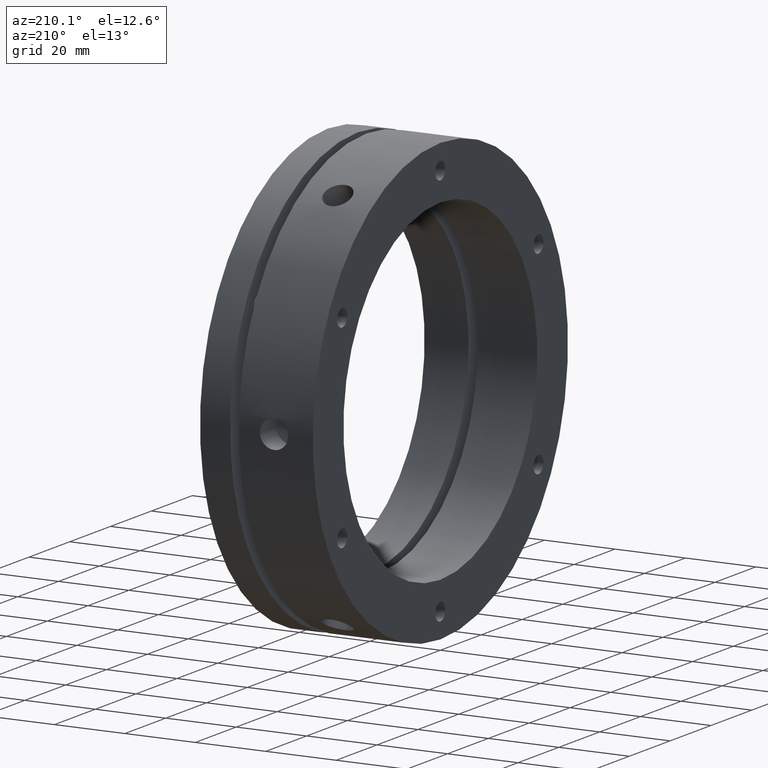
[diagram: clean part render]
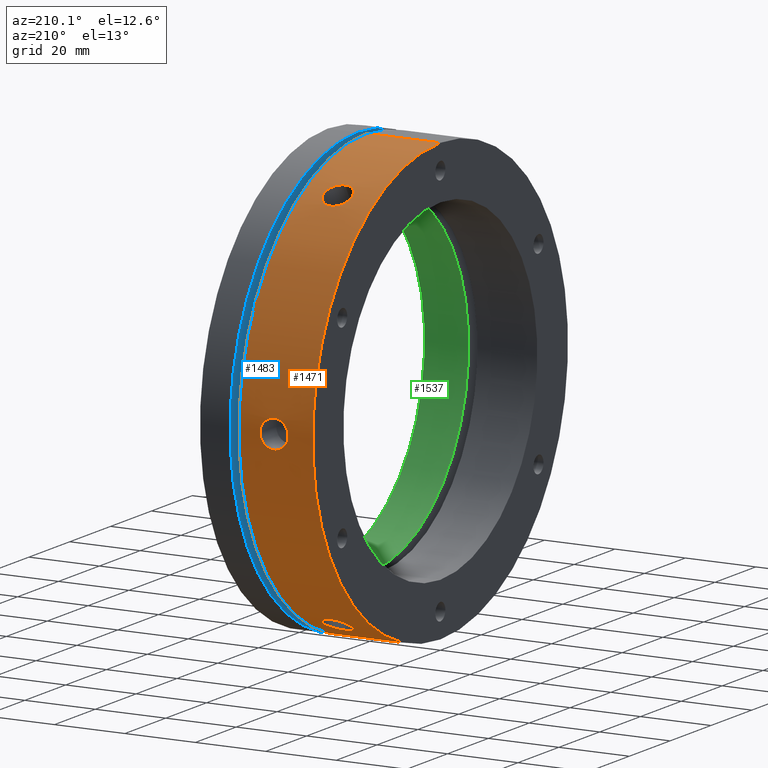
[diagram: same view with three faces highlighted in distinct colors, each labeled with its STEP entity id]
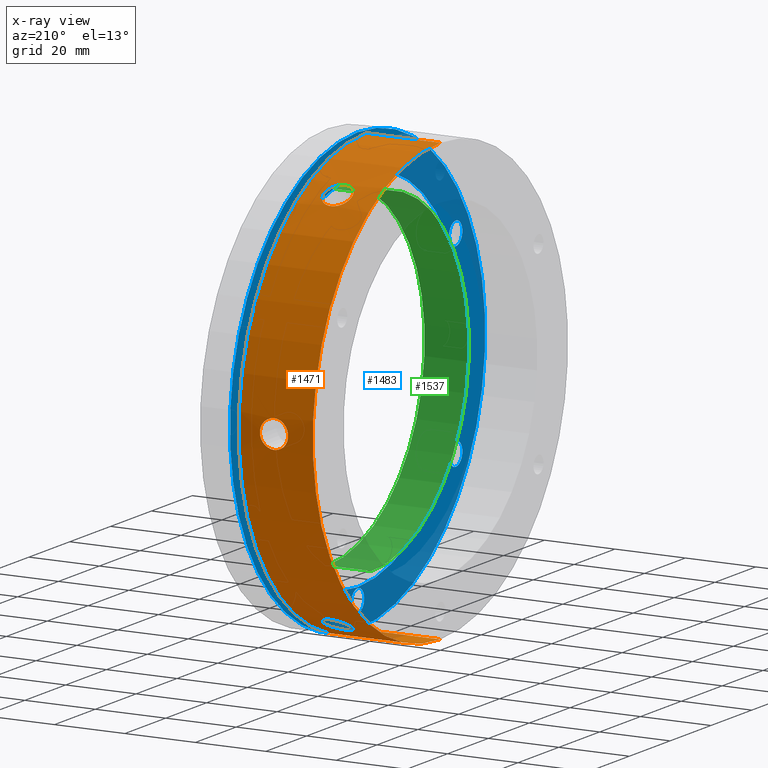
[diagram: x-ray of the same camera — body ghosted, the three highlighted faces saturated]
A machine part, auxiliary view with three faces highlighted in distinct colors.
The next image is the same camera in x-ray (body ghosted, the three faces saturated) — at least one of them is partly hidden behind the body in this view.
Their STEP definitions:

[orange] entity #1471 — the highlighted cylindrical surface (partial cylindrical patch) has radius 62.5 mm, axis along (1, 0, 0).
#59 = VERTEX_POINT ( 'NONE', #1100 ) ;
#99 = VERTEX_POINT ( 'NONE', #1140 ) ;
#102 = VERTEX_POINT ( 'NONE', #1143 ) ;
#115 = VERTEX_POINT ( 'NONE', #1156 ) ;
#119 = VERTEX_POINT ( 'NONE', #1160 ) ;
#132 = VERTEX_POINT ( 'NONE', #1173 ) ;
#150 = VERTEX_POINT ( 'NONE', #1191 ) ;
#161 = ORIENTED_EDGE ( 'NONE', *, *, #4025, .T. ) ;
#175 = VERTEX_POINT ( 'NONE', #1215 ) ;
#188 = VERTEX_POINT ( 'NONE', #1227 ) ;
#190 = VERTEX_POINT ( 'NONE', #1229 ) ;
#252 = FACE_BOUND ( 'NONE', #416, .T. ) ;
#261 = CYLINDRICAL_SURFACE ( 'NONE', #3765, 62.50000000000000000 ) ;
#265 = FACE_BOUND ( 'NONE', #396, .T. ) ;
#396 = EDGE_LOOP ( 'NONE', ( #3708, #3707 ) ) ;
#416 = EDGE_LOOP ( 'NONE', ( #3706, #3705 ) ) ;
#418 = EDGE_LOOP ( 'NONE', ( #161, #3709 ) ) ;
#437 = EDGE_LOOP ( 'NONE', ( #3704, #3703, #3702, #3701 ) ) ;
#585 = AXIS2_PLACEMENT_3D ( 'NONE', #4289, #4290, #4291 ) ;
#586 = AXIS2_PLACEMENT_3D ( 'NONE', #4252, #4253, #4254 ) ;
#1100 = CARTESIAN_POINT ( 'NONE',  ( 10.99999999999998600, 27.72183271429991800, -56.01562274009252500 ) ) ;
#1140 = CARTESIAN_POINT ( 'NONE',  ( 10.99999999999998600, 62.37186865887537800, -4.000000000000033800 ) ) ;
#1143 = CARTESIAN_POINT ( 'NONE',  ( 10.99999999999998600, 34.65003594457543600, -52.01562274009253200 ) ) ;
#1156 = CARTESIAN_POINT ( 'NONE',  ( -1.734723475976807100E-014, 0.0000000000000000000, -62.50000000000000000 ) ) ;
#1160 = CARTESIAN_POINT ( 'NONE',  ( 10.99999999999998600, 27.72183271429999300, 56.01562274009249600 ) ) ;
#1173 = CARTESIAN_POINT ( 'NONE',  ( -1.734723475976807100E-014, 7.654042494670957800E-015, 62.50000000000000000 ) ) ;
#1191 = CARTESIAN_POINT ( 'NONE',  ( 10.99999999999998600, 34.65003594457550000, 52.01562274009248900 ) ) ;
#1215 = CARTESIAN_POINT ( 'NONE',  ( 10.99999999999998600, 62.37186865887537800, 3.999999999999966200 ) ) ;
#1227 = CARTESIAN_POINT ( 'NONE',  ( 20.99999999999998600, 0.0000000000000000000, -62.50000000000000000 ) ) ;
#1229 = CARTESIAN_POINT ( 'NONE',  ( 20.99999999999998600, 7.654042494670957800E-015, 62.50000000000000000 ) ) ;
#1471 = ADVANCED_FACE ( 'NONE', ( #1616, #265, #252, #1614 ), #261, .T. ) ;
#1614 = FACE_OUTER_BOUND ( 'NONE', #437, .T. ) ;
#1616 = FACE_BOUND ( 'NONE', #418, .T. ) ;
#2137 = LINE ( 'NONE', #4251, #2145 ) ;
#2141 = CIRCLE ( 'NONE', #586, 62.50000000000000000 ) ;
#2142 = CIRCLE ( 'NONE', #585, 62.50000000000000000 ) ;
#2143 = LINE ( 'NONE', #4462, #2147 ) ;
#2145 = VECTOR ( 'NONE', #4246, 1000.000000000000000 ) ;
#2147 = VECTOR ( 'NONE', #4463, 1000.000000000000000 ) ;
#2667 = DIRECTION ( 'NONE',  ( 0.0000000000000000000, 0.0000000000000000000, -1.000000000000000000 ) ) ;
#2668 = CARTESIAN_POINT ( 'NONE',  ( 15.99999999999998200, 0.0000000000000000000, 0.0000000000000000000 ) ) ;
#2669 = DIRECTION ( 'NONE',  ( 1.000000000000000000, 0.0000000000000000000, 0.0000000000000000000 ) ) ;
#3701 = ORIENTED_EDGE ( 'NONE', *, *, #4026, .F. ) ;
#3702 = ORIENTED_EDGE ( 'NONE', *, *, #4017, .T. ) ;
#3703 = ORIENTED_EDGE ( 'NONE', *, *, #4020, .T. ) ;
#3704 = ORIENTED_EDGE ( 'NONE', *, *, #4019, .T. ) ;
#3705 = ORIENTED_EDGE ( 'NONE', *, *, #4022, .T. ) ;
#3706 = ORIENTED_EDGE ( 'NONE', *, *, #4018, .T. ) ;
#3707 = ORIENTED_EDGE ( 'NONE', *, *, #4023, .T. ) ;
#3708 = ORIENTED_EDGE ( 'NONE', *, *, #4021, .T. ) ;
#3709 = ORIENTED_EDGE ( 'NONE', *, *, #4024, .T. ) ;
#3765 = AXIS2_PLACEMENT_3D ( 'NONE', #2668, #2669, #2667 ) ;
#4017 = EDGE_CURVE ( 'NONE', #190, #188, #2141, .T. ) ;
#4018 = EDGE_CURVE ( 'NONE', #102, #59, #4762, .T. ) ;
#4019 = EDGE_CURVE ( 'NONE', #115, #132, #2142, .T. ) ;
#4020 = EDGE_CURVE ( 'NONE', #132, #190, #2137, .T. ) ;
#4021 = EDGE_CURVE ( 'NONE', #175, #99, #4759, .T. ) ;
#4022 = EDGE_CURVE ( 'NONE', #59, #102, #4757, .T. ) ;
#4023 = EDGE_CURVE ( 'NONE', #99, #175, #4763, .T. ) ;
#4024 = EDGE_CURVE ( 'NONE', #150, #119, #4766, .T. ) ;
#4025 = EDGE_CURVE ( 'NONE', #119, #150, #4774, .T. ) ;
#4026 = EDGE_CURVE ( 'NONE', #115, #188, #2143, .T. ) ;
#4242 = CARTESIAN_POINT ( 'NONE',  ( 10.99999999999998600, 34.65003594457543600, -52.01562274009253200 ) ) ;
#4246 = DIRECTION ( 'NONE',  ( 1.000000000000000000, 0.0000000000000000000, 0.0000000000000000000 ) ) ;
#4250 = CARTESIAN_POINT ( 'NONE',  ( 10.73908197253546200, 34.65003594457543600, -52.01562274009252500 ) ) ;
#4251 = CARTESIAN_POINT ( 'NONE',  ( 15.99999999999998200, 7.654042494670957800E-015, 62.50000000000000000 ) ) ;
#4252 = CARTESIAN_POINT ( 'NONE',  ( 20.99999999999998600, 0.0000000000000000000, 0.0000000000000000000 ) ) ;
#4253 = DIRECTION ( 'NONE',  ( -1.000000000000000000, -0.0000000000000000000, -0.0000000000000000000 ) ) ;
#4254 = DIRECTION ( 'NONE',  ( 0.0000000000000000000, 0.0000000000000000000, -1.000000000000000000 ) ) ;
#4255 = CARTESIAN_POINT ( 'NONE',  ( 10.47406487987308000, 34.62826723459271200, -52.03014256505085900 ) ) ;
#4256 = CARTESIAN_POINT ( 'NONE',  ( 9.961129843323933000, 34.54288401539118800, -52.08686773947071900 ) ) ;
#4257 = CARTESIAN_POINT ( 'NONE',  ( 9.711816615131796800, 34.47974157233441200, -52.12875893047970500 ) ) ;
#4258 = CARTESIAN_POINT ( 'NONE',  ( 9.227578193804642800, 34.31203177995331500, -52.23930093003259100 ) ) ;
#4259 = CARTESIAN_POINT ( 'NONE',  ( 8.993496661129240600, 34.20710537631733700, -52.30817311177330700 ) ) ;
#4260 = CARTESIAN_POINT ( 'NONE',  ( 8.560255960812094500, 33.96398500988600900, -52.46635831431372300 ) ) ;
#4261 = CARTESIAN_POINT ( 'NONE',  ( 8.358308850565325800, 33.82495705325564500, -52.55622897989235300 ) ) ;
#4262 = CARTESIAN_POINT ( 'NONE',  ( 7.984920217227907500, 33.51005989736189900, -52.75756637598707500 ) ) ;
#4263 = CARTESIAN_POINT ( 'NONE',  ( 7.819349203663183100, 33.33907207893907600, -52.86589863106917900 ) ) ;
#4264 = CARTESIAN_POINT ( 'NONE',  ( 7.529797173180686100, 32.97165707797332600, -53.09582652796459000 ) ) ;
#4265 = CARTESIAN_POINT ( 'NONE',  ( 7.404626013742523000, 32.77276933332913700, -53.21892836721381300 ) ) ;
#4266 = CARTESIAN_POINT ( 'NONE',  ( 7.203964270729465500, 32.35902138127138300, -53.47151093411005700 ) ) ;
#4267 = CARTESIAN_POINT ( 'NONE',  ( 7.128370915274827800, 32.14544167899404000, -53.60024510436626600 ) ) ;
#4268 = CARTESIAN_POINT ( 'NONE',  ( 7.026140786661166300, 31.70473899975172900, -53.86209447230371000 ) ) ;
#4269 = CARTESIAN_POINT ( 'NONE',  ( 6.999816622141542800, 31.47645795416516300, -53.99585572750349600 ) ) ;
#4270 = CARTESIAN_POINT ( 'NONE',  ( 7.000185324294786700, 31.01870905136947700, -54.26010993236364800 ) ) ;
#4271 = CARTESIAN_POINT ( 'NONE',  ( 7.026299543754061200, 30.79283220314310300, -54.38857257091833500 ) ) ;
#4272 = CARTESIAN_POINT ( 'NONE',  ( 7.128274619578095700, 30.34692032447638600, -54.63862890128975600 ) ) ;
#4273 = CARTESIAN_POINT ( 'NONE',  ( 7.205381377466989300, 30.12454457109813800, -54.76148694851169600 ) ) ;
#4274 = CARTESIAN_POINT ( 'NONE',  ( 7.406460515172702800, 29.69930418583749100, -54.99327203672454100 ) ) ;
#4275 = CARTESIAN_POINT ( 'NONE',  ( 7.529458518527383700, 29.49692593668033800, -55.10198390216799400 ) ) ;
#4276 = CARTESIAN_POINT ( 'NONE',  ( 7.819990495107329100, 29.11285519957229100, -55.30586706487407200 ) ) ;
#4277 = CARTESIAN_POINT ( 'NONE',  ( 7.989007516708714900, 28.93050755054258300, -55.40135171242022900 ) ) ;
#4278 = CARTESIAN_POINT ( 'NONE',  ( 8.358142559934096400, 28.60292409874481800, -55.57118652410378000 ) ) ;
#4279 = CARTESIAN_POINT ( 'NONE',  ( 8.559556228073788000, 28.45550908161983700, -55.64670162383816900 ) ) ;
#4280 = CARTESIAN_POINT ( 'NONE',  ( 8.996942524801378100, 28.19471347890664200, -55.77929302661500800 ) ) ;
#4281 = CARTESIAN_POINT ( 'NONE',  ( 9.229680194154054700, 28.08372155192327600, -55.83515505791793700 ) ) ;
#4282 = CARTESIAN_POINT ( 'NONE',  ( 9.711030784725148000, 27.90529495582672200, -55.92454264431682300 ) ) ;
#4283 = CARTESIAN_POINT ( 'NONE',  ( 9.963201383353883500, 27.83650866016614600, -55.95874749201846800 ) ) ;
#4284 = CARTESIAN_POINT ( 'NONE',  ( 10.47952407784284600, 27.74454694549256200, -56.00439938123031400 ) ) ;
#4285 = CARTESIAN_POINT ( 'NONE',  ( 10.73908171002376500, 27.72183271429991800, -56.01562274009251800 ) ) ;
#4286 = CARTESIAN_POINT ( 'NONE',  ( 10.99999999999998600, 27.72183271429991800, -56.01562274009252500 ) ) ;
#4287 = CARTESIAN_POINT ( 'NONE',  ( 10.99999999999998600, 62.37186865887537800, 3.999999999999966200 ) ) ;
#4288 = CARTESIAN_POINT ( 'NONE',  ( 10.73908197253546200, 62.37186865887539300, 3.999999999999968000 ) ) ;
#4289 = CARTESIAN_POINT ( 'NONE',  ( -1.734723475976807100E-014, 0.0000000000000000000, 0.0000000000000000000 ) ) ;
#4290 = DIRECTION ( 'NONE',  ( 1.000000000000000000, 0.0000000000000000000, 0.0000000000000000000 ) ) ;
#4291 = DIRECTION ( 'NONE',  ( 0.0000000000000000000, 0.0000000000000000000, -1.000000000000000000 ) ) ;
#4292 = CARTESIAN_POINT ( 'NONE',  ( 10.99999999999998600, 27.72183271429991800, -56.01562274009252500 ) ) ;
#4293 = CARTESIAN_POINT ( 'NONE',  ( 11.26091829009181700, 27.72183271429991800, -56.01562274009251800 ) ) ;
#4294 = CARTESIAN_POINT ( 'NONE',  ( 10.47406487987307400, 62.37355884115642400, 3.973887831668149000 ) ) ;
#4295 = CARTESIAN_POINT ( 'NONE',  ( 9.961129843323925900, 62.37999267363737500, 3.871581207572814400 ) ) ;
#4296 = CARTESIAN_POINT ( 'NONE',  ( 9.711816615131796800, 62.38470028771754300, 3.795952652324127400 ) ) ;
#4297 = CARTESIAN_POINT ( 'NONE',  ( 9.227578193804644600, 62.39657757132494700, 3.595440711882243300 ) ) ;
#4298 = CARTESIAN_POINT ( 'NONE',  ( 8.993496661129238800, 62.40375942850843700, 3.470135689935395000 ) ) ;
#4299 = CARTESIAN_POINT ( 'NONE',  ( 8.560255960812092700, 62.41919164919560400, 3.180494675158259500 ) ) ;
#4300 = CARTESIAN_POINT ( 'NONE',  ( 8.358308850565329400, 62.42750795032652900, 3.015157600090816900 ) ) ;
#4301 = CARTESIAN_POINT ( 'NONE',  ( 7.984920217227905700, 62.44442267212947000, 2.641779965460014700 ) ) ;
#4302 = CARTESIAN_POINT ( 'NONE',  ( 7.819349203663181300, 62.45274724786843000, 2.439534043427111300 ) ) ;
#4303 = CARTESIAN_POINT ( 'NONE',  ( 7.529797173180686100, 62.46816314713570500, 2.006379370411571500 ) ) ;
#4304 = CARTESIAN_POINT ( 'NONE',  ( 7.404626013742519500, 62.47532859485603000, 1.772586611423695900 ) ) ;
#4305 = CARTESIAN_POINT ( 'NONE',  ( 7.203964270729464700, 62.48719753831240800, 1.287979090729774800 ) ) ;
#4306 = CARTESIAN_POINT ( 'NONE',  ( 7.128370915274824200, 62.49189474895069200, 1.038646557696780300 ) ) ;
#4307 = CARTESIAN_POINT ( 'NONE',  ( 7.026140786661167100, 62.49831161392825200, 0.5260621579883499900 ) ) ;
#4308 = CARTESIAN_POINT ( 'NONE',  ( 6.999816622141542800, 62.50001173618011300, 0.2614843457080131000 ) ) ;
#4309 = CARTESIAN_POINT ( 'NONE',  ( 7.000185324294786700, 62.49998813924801800, -0.2670649350975878900 ) ) ;
#4310 = CARTESIAN_POINT ( 'NONE',  ( 7.026299543754062100, 62.49830162356032300, -0.5269113430657276200 ) ) ;
#4311 = CARTESIAN_POINT ( 'NONE',  ( 7.128274619578100200, 62.49190081870573700, -1.038110523026053700 ) ) ;
#4312 = CARTESIAN_POINT ( 'NONE',  ( 7.205381377466991900, 62.48711113197018100, -1.292122598248292700 ) ) ;
#4313 = CARTESIAN_POINT ( 'NONE',  ( 7.406460515172704500, 62.47522271395060000, -1.776284118705516900 ) ) ;
#4314 = CARTESIAN_POINT ( 'NONE',  ( 7.529458518527385500, 62.46818082653884100, -2.005904756370755900 ) ) ;
#4315 = CARTESIAN_POINT ( 'NONE',  ( 7.819990495107330900, 62.45271345629219400, -2.440461352909577600 ) ) ;
#4316 = CARTESIAN_POINT ( 'NONE',  ( 7.989007516708720200, 62.44423176222370100, -2.646121373062754900 ) ) ;
#4317 = CARTESIAN_POINT ( 'NONE',  ( 8.358142559934098200, 62.42752129768971500, -3.014734370020776500 ) ) ;
#4318 = CARTESIAN_POINT ( 'NONE',  ( 8.559556228073795100, 62.41921178386654400, -3.180157069617526800 ) ) ;
#4319 = CARTESIAN_POINT ( 'NONE',  ( 8.996942524801388800, 62.40364150563812000, -3.472308388150843000 ) ) ;
#4320 = CARTESIAN_POINT ( 'NONE',  ( 9.229680194154063600, 62.39652348036175800, -3.596361232184900600 ) ) ;
#4321 = CARTESIAN_POINT ( 'NONE',  ( 9.711030784725155100, 62.38472210291788400, -3.795576990314732500 ) ) ;
#4322 = CARTESIAN_POINT ( 'NONE',  ( 9.963201383353887100, 62.37995122212982600, -3.872250093639850700 ) ) ;
#4323 = CARTESIAN_POINT ( 'NONE',  ( 10.47952407784285000, 62.37350606058121400, -3.974717219328662000 ) ) ;
#4324 = CARTESIAN_POINT ( 'NONE',  ( 10.73908171002377200, 62.37186865887538500, -4.000000000000034600 ) ) ;
#4325 = CARTESIAN_POINT ( 'NONE',  ( 10.99999999999998600, 62.37186865887537800, -4.000000000000033800 ) ) ;
#4326 = CARTESIAN_POINT ( 'NONE',  ( 10.99999999999998600, 62.37186865887537800, -4.000000000000033800 ) ) ;
#4327 = CARTESIAN_POINT ( 'NONE',  ( 11.26091829009181700, 62.37186865887538500, -4.000000000000033800 ) ) ;
#4328 = CARTESIAN_POINT ( 'NONE',  ( 11.52593565096306200, 27.74529165439950500, -56.00403037311326000 ) ) ;
#4329 = CARTESIAN_POINT ( 'NONE',  ( 12.03887117472569700, 27.83710888766612300, -55.95844883300912900 ) ) ;
#4330 = CARTESIAN_POINT ( 'NONE',  ( 12.28818463263824500, 27.90495907811523300, -55.92471140217161700 ) ) ;
#4331 = CARTESIAN_POINT ( 'NONE',  ( 12.77242348288917200, 28.08454651322136500, -55.83474127919080800 ) ) ;
#4332 = CARTESIAN_POINT ( 'NONE',  ( 13.00650517268105600, 28.19665498299772800, -55.77830833187889700 ) ) ;
#4333 = CARTESIAN_POINT ( 'NONE',  ( 13.43974613008660600, 28.45520805072128600, -55.64685226844845500 ) ) ;
#4334 = CARTESIAN_POINT ( 'NONE',  ( 13.64169334056506600, 28.60255258306033400, -55.57138571342171200 ) ) ;
#4335 = CARTESIAN_POINT ( 'NONE',  ( 14.01508210165670800, 28.93436509660693200, -55.39934513000021400 ) ) ;
#4336 = CARTESIAN_POINT ( 'NONE',  ( 14.18065304588344800, 29.11367774145310600, -55.30543132171033000 ) ) ;
#4337 = CARTESIAN_POINT ( 'NONE',  ( 14.47020494900288200, 29.49650927672302800, -55.10220418278918000 ) ) ;
#4338 = CARTESIAN_POINT ( 'NONE',  ( 14.59537600473698200, 29.70256283620655300, -54.99151304929750900 ) ) ;
#4339 = CARTESIAN_POINT ( 'NONE',  ( 14.79603734635862500, 30.12818029365476800, -54.75948775036968600 ) ) ;
#4340 = CARTESIAN_POINT ( 'NONE',  ( 14.87163046199583100, 30.34645749518172400, -54.63888920596527000 ) ) ;
#4341 = CARTESIAN_POINT ( 'NONE',  ( 14.97385999695742100, 30.79357763997437700, -54.38815378645875900 ) ) ;
#4342 = CARTESIAN_POINT ( 'NONE',  ( 15.00018379458790100, 31.02355961178728400, -54.25733673818754000 ) ) ;
#4343 = CARTESIAN_POINT ( 'NONE',  ( 14.99981425006657800, 31.48128430573106900, -53.99304195328249300 ) ) ;
#4344 = CARTESIAN_POINT ( 'NONE',  ( 14.97369968184067800, 31.70547434537725800, -53.86165832728736500 ) ) ;
#4345 = CARTESIAN_POINT ( 'NONE',  ( 14.87172400121409600, 32.14498485127611400, -53.60051576376901000 ) ) ;
#4346 = CARTESIAN_POINT ( 'NONE',  ( 14.79461697510932400, 32.36257064806552100, -53.46936187468272500 ) ) ;
#4347 = CARTESIAN_POINT ( 'NONE',  ( 14.59353749232171000, 32.77592192339325500, -53.21698582509570500 ) ) ;
#4348 = CARTESIAN_POINT ( 'NONE',  ( 14.47053937015888000, 32.97125796739548100, -53.09607723332128200 ) ) ;
#4349 = CARTESIAN_POINT ( 'NONE',  ( 14.18000723354046900, 33.33986073954727700, -52.86540414474246300 ) ) ;
#4350 = CARTESIAN_POINT ( 'NONE',  ( 14.01099020717969900, 33.51372637646892400, -52.75522896295154900 ) ) ;
#4351 = CARTESIAN_POINT ( 'NONE',  ( 13.64185526146667500, 33.82459878576008100, -52.55645113164156600 ) ) ;
#4352 = CARTESIAN_POINT ( 'NONE',  ( 13.44044167789000000, 33.96370403581519100, -52.46654369020932800 ) ) ;
#4353 = CARTESIAN_POINT ( 'NONE',  ( 13.00305561046164400, 34.20892891269015500, -52.30698405830339200 ) ) ;
#4354 = CARTESIAN_POINT ( 'NONE',  ( 12.77031815067331200, 34.31280259452159200, -52.23879338784701800 ) ) ;
#4355 = CARTESIAN_POINT ( 'NONE',  ( 12.28896796598593400, 34.47942748642129400, -52.12896542918721100 ) ) ;
#4356 = CARTESIAN_POINT ( 'NONE',  ( 12.03679758098764200, 34.54344277801503400, -52.08649725499181200 ) ) ;
#4357 = CARTESIAN_POINT ( 'NONE',  ( 11.52047540007440100, 34.62895915703983000, -52.02968213387753600 ) ) ;
#4358 = CARTESIAN_POINT ( 'NONE',  ( 11.26091802758012300, 34.65003594457542800, -52.01562274009253900 ) ) ;
#4359 = CARTESIAN_POINT ( 'NONE',  ( 10.99999999999998600, 34.65003594457543600, -52.01562274009253200 ) ) ;
#4360 = CARTESIAN_POINT ( 'NONE',  ( 11.26091829009181700, 34.65003594457550000, 52.01562274009247500 ) ) ;
#4361 = CARTESIAN_POINT ( 'NONE',  ( 10.99999999999998600, 34.65003594457550000, 52.01562274009248900 ) ) ;
#4362 = CARTESIAN_POINT ( 'NONE',  ( 11.52593565096306200, 62.37355884463112700, -3.973887778438294700 ) ) ;
#4363 = CARTESIAN_POINT ( 'NONE',  ( 12.03887117472570100, 62.37999268959062200, -3.871580951872141400 ) ) ;
#4364 = CARTESIAN_POINT ( 'NONE',  ( 12.28818463263824500, 62.38470031265150300, -3.795952247872852200 ) ) ;
#4365 = CARTESIAN_POINT ( 'NONE',  ( 12.77242348288917600, 62.39657761812159700, -3.595439905380047200 ) ) ;
#4366 = CARTESIAN_POINT ( 'NONE',  ( 13.00650517268105600, 62.40375948702720900, -3.470134648918363800 ) ) ;
#4367 = CARTESIAN_POINT ( 'NONE',  ( 13.43974613008660200, 62.41919173047671200, -3.180493092328140000 ) ) ;
#4368 = CARTESIAN_POINT ( 'NONE',  ( 13.64169334056506200, 62.42750804285699200, -3.015155706700414700 ) ) ;
#4369 = CARTESIAN_POINT ( 'NONE',  ( 14.01508210165670800, 62.44442278390536700, -2.641777348964744000 ) ) ;
#4370 = CARTESIAN_POINT ( 'NONE',  ( 14.18065304588344400, 62.45274736258326700, -2.439531139163240600 ) ) ;
#4371 = CARTESIAN_POINT ( 'NONE',  ( 14.47020494900288200, 62.46816326517410500, -2.006375734789122700 ) ) ;
#4372 = CARTESIAN_POINT ( 'NONE',  ( 14.59537600473698200, 62.47532871133839900, -1.772582550990340300 ) ) ;
#4373 = CARTESIAN_POINT ( 'NONE',  ( 14.79603734635862500, 62.48719763687032700, -1.287974371082137000 ) ) ;
#4374 = CARTESIAN_POINT ( 'NONE',  ( 14.87163046199583100, 62.49189483452013100, -1.038641497290593500 ) ) ;
#4375 = CARTESIAN_POINT ( 'NONE',  ( 14.97385999695742100, 62.49831166399528100, -0.5260563836031304500 ) ) ;
#4376 = CARTESIAN_POINT ( 'NONE',  ( 15.00018379458790100, 62.50001176285074700, -0.2614776294651043900 ) ) ;
#4377 = CARTESIAN_POINT ( 'NONE',  ( 14.99981425006657800, 62.49998811200715200, 0.2670709758821817600 ) ) ;
#4378 = CARTESIAN_POINT ( 'NONE',  ( 14.97369968184067800, 62.49830157407713900, 0.5269170584887957800 ) ) ;
#4379 = CARTESIAN_POINT ( 'NONE',  ( 14.87172400121409600, 62.49190073301026200, 1.038115603586530200 ) ) ;
#4380 = CARTESIAN_POINT ( 'NONE',  ( 14.79461697510932400, 62.48711103165113200, 1.292127375651984000 ) ) ;
#4381 = CARTESIAN_POINT ( 'NONE',  ( 14.59353749232171400, 62.47522259906585900, 1.776288105566008900 ) ) ;
#4382 = CARTESIAN_POINT ( 'NONE',  ( 14.47053937015887600, 62.46818070905453600, 2.005908377833908400 ) ) ;
#4383 = CARTESIAN_POINT ( 'NONE',  ( 14.18000723354046700, 62.45271334045177300, 2.440464286712124200 ) ) ;
#4384 = CARTESIAN_POINT ( 'NONE',  ( 14.01099020717969900, 62.44423165261508800, 2.646123936026898400 ) ) ;
#4385 = CARTESIAN_POINT ( 'NONE',  ( 13.64185526146667500, 62.42752120563702800, 3.014736255463708000 ) ) ;
#4386 = CARTESIAN_POINT ( 'NONE',  ( 13.44044167789000000, 62.41921170239502500, 3.180158656527333000 ) ) ;
#4387 = CARTESIAN_POINT ( 'NONE',  ( 13.00305561046164400, 62.40364144618346400, 3.472309445493935600 ) ) ;
#4388 = CARTESIAN_POINT ( 'NONE',  ( 12.77031815067331200, 62.39652343418288200, 3.596362027972762400 ) ) ;
#4389 = CARTESIAN_POINT ( 'NONE',  ( 12.28896796598593400, 62.38472207788751000, 3.795577396590645900 ) ) ;
#4390 = CARTESIAN_POINT ( 'NONE',  ( 12.03679758098764200, 62.37995120597884800, 3.872250352439187800 ) ) ;
#4391 = CARTESIAN_POINT ( 'NONE',  ( 11.52047540007440500, 62.37350605728721600, 3.974717269671471900 ) ) ;
#4392 = CARTESIAN_POINT ( 'NONE',  ( 11.26091802758012000, 62.37186865887537800, 3.999999999999966200 ) ) ;
#4393 = CARTESIAN_POINT ( 'NONE',  ( 10.99999999999998600, 62.37186865887537800, 3.999999999999966200 ) ) ;
#4394 = CARTESIAN_POINT ( 'NONE',  ( 10.99999999999998600, 27.72183271429999300, 56.01562274009249600 ) ) ;
#4395 = CARTESIAN_POINT ( 'NONE',  ( 10.73908197253546200, 27.72183271429998500, 56.01562274009248200 ) ) ;
#4396 = CARTESIAN_POINT ( 'NONE',  ( 11.52593565096306200, 34.62826719023165400, 52.03014259467494200 ) ) ;
#4397 = CARTESIAN_POINT ( 'NONE',  ( 12.03887117472569900, 34.54288380192454600, 52.08686788113695300 ) ) ;
#4398 = CARTESIAN_POINT ( 'NONE',  ( 12.28818463263824300, 34.47974123453630600, 52.12875915429877000 ) ) ;
#4399 = CARTESIAN_POINT ( 'NONE',  ( 12.77242348288917200, 34.31203110490025700, 52.23930137381075400 ) ) ;
#4400 = CARTESIAN_POINT ( 'NONE',  ( 13.00650517268105600, 34.20710450402953000, 52.30817368296053600 ) ) ;
#4401 = CARTESIAN_POINT ( 'NONE',  ( 13.43974613008660600, 33.96398367975548600, 52.46635917612032100 ) ) ;
#4402 = CARTESIAN_POINT ( 'NONE',  ( 13.64169334056506600, 33.82495545979670500, 52.55623000672130700 ) ) ;
#4403 = CARTESIAN_POINT ( 'NONE',  ( 14.01508210165670800, 33.51005768729848500, 52.75756778103546200 ) ) ;
#4404 = CARTESIAN_POINT ( 'NONE',  ( 14.18065304588344400, 33.33906962113021400, 52.86590018254706500 ) ) ;
#4405 = CARTESIAN_POINT ( 'NONE',  ( 14.47020494900288200, 32.97165398845112300, 53.09582844800007000 ) ) ;
#4406 = CARTESIAN_POINT ( 'NONE',  ( 14.59537600473698400, 32.77276587513186700, 53.21893049830717400 ) ) ;
#4407 = CARTESIAN_POINT ( 'NONE',  ( 14.79603734635862500, 32.35901734321559100, 53.47151337928757200 ) ) ;
#4408 = CARTESIAN_POINT ( 'NONE',  ( 14.87163046199583100, 32.14543733933845700, 53.60024770867467200 ) ) ;
#4409 = CARTESIAN_POINT ( 'NONE',  ( 14.97385999695742400, 31.70473402402095800, 53.86209740285563900 ) ) ;
#4410 = CARTESIAN_POINT ( 'NONE',  ( 15.00018379458790100, 31.47645215106352600, 53.99585910872242800 ) ) ;
#4411 = CARTESIAN_POINT ( 'NONE',  ( 14.99981425006657800, 31.01870380627613600, 54.26011292916469100 ) ) ;
#4412 = CARTESIAN_POINT ( 'NONE',  ( 14.97369968184067800, 30.79282722869993100, 54.38857538577615700 ) ) ;
#4413 = CARTESIAN_POINT ( 'NONE',  ( 14.87172400121409600, 30.34691588173421600, 54.63863136735552200 ) ) ;
#4414 = CARTESIAN_POINT ( 'NONE',  ( 14.79461697510932400, 30.12454038358566100, 54.76148925033469100 ) ) ;
#4415 = CARTESIAN_POINT ( 'NONE',  ( 14.59353749232171500, 29.69930067567265700, 54.99327393066168700 ) ) ;
#4416 = CARTESIAN_POINT ( 'NONE',  ( 14.47053937015887800, 29.49692274165910500, 55.10198561115517900 ) ) ;
#4417 = CARTESIAN_POINT ( 'NONE',  ( 14.18000723354047200, 29.11285260090454200, 55.30586843145457700 ) ) ;
#4418 = CARTESIAN_POINT ( 'NONE',  ( 14.01099020717969900, 28.93050527614621000, 55.40135289897843800 ) ) ;
#4419 = CARTESIAN_POINT ( 'NONE',  ( 13.64185526146667700, 28.60292241987700700, 55.57118738710526900 ) ) ;
#4420 = CARTESIAN_POINT ( 'NONE',  ( 13.44044167788999500, 28.45550766657987700, 55.64670234673666700 ) ) ;
#4421 = CARTESIAN_POINT ( 'NONE',  ( 13.00305561046163800, 28.19471253349335500, 55.77929350379732700 ) ) ;
#4422 = CARTESIAN_POINT ( 'NONE',  ( 12.77031815067331000, 28.08372083966132500, 55.83515541581977700 ) ) ;
#4423 = CARTESIAN_POINT ( 'NONE',  ( 12.28896796598592900, 27.90529459146628000, 55.92454282577782000 ) ) ;
#4424 = CARTESIAN_POINT ( 'NONE',  ( 12.03679758098764200, 27.83650842796387400, 55.95874760743099300 ) ) ;
#4425 = CARTESIAN_POINT ( 'NONE',  ( 11.52047540007440100, 27.74454690024741400, 56.00439940354900200 ) ) ;
#4426 = CARTESIAN_POINT ( 'NONE',  ( 11.26091802758012300, 27.72183271429999300, 56.01562274009250300 ) ) ;
#4427 = CARTESIAN_POINT ( 'NONE',  ( 10.99999999999998600, 27.72183271429999300, 56.01562274009249600 ) ) ;
#4430 = CARTESIAN_POINT ( 'NONE',  ( 10.47406487987307600, 27.74529160656376100, 56.00403039671900300 ) ) ;
#4431 = CARTESIAN_POINT ( 'NONE',  ( 9.961129843323927700, 27.83710865824623000, 55.95844894704352900 ) ) ;
#4432 = CARTESIAN_POINT ( 'NONE',  ( 9.711816615131795100, 27.90495871538319200, 55.92471158280383000 ) ) ;
#4433 = CARTESIAN_POINT ( 'NONE',  ( 9.227578193804641100, 28.08454579137167400, 55.83474164191486700 ) ) ;
#4434 = CARTESIAN_POINT ( 'NONE',  ( 8.993496661129237100, 28.19665405219116000, 55.77830880170869000 ) ) ;
#4435 = CARTESIAN_POINT ( 'NONE',  ( 8.560255960812094500, 28.45520663930964000, 55.64685298947200900 ) ) ;
#4436 = CARTESIAN_POINT ( 'NONE',  ( 8.358308850565324000, 28.60255089707091600, 55.57138657998316900 ) ) ;
#4437 = CARTESIAN_POINT ( 'NONE',  ( 7.984920217227905700, 28.93436277476761400, 55.39934634144708500 ) ) ;
#4438 = CARTESIAN_POINT ( 'NONE',  ( 7.819349203663184900, 29.11367516892938300, 55.30543267449627400 ) ) ;
#4439 = CARTESIAN_POINT ( 'NONE',  ( 7.529797173180689600, 29.49650606916242900, 55.10220589837617700 ) ) ;
#4440 = CARTESIAN_POINT ( 'NONE',  ( 7.404626013742520400, 29.70255926152694000, 54.99151497863751100 ) ) ;
#4441 = CARTESIAN_POINT ( 'NONE',  ( 7.203964270729464700, 30.12817615704105700, 54.75949002483985600 ) ) ;
#4442 = CARTESIAN_POINT ( 'NONE',  ( 7.128370915274826900, 30.34645306995669100, 54.63889166206304500 ) ) ;
#4443 = CARTESIAN_POINT ( 'NONE',  ( 7.026140786661167100, 30.79357261417657600, 54.38815663029205200 ) ) ;
#4444 = CARTESIAN_POINT ( 'NONE',  ( 6.999816622141541900, 31.02355378201497500, 54.25734007321151600 ) ) ;
#4445 = CARTESIAN_POINT ( 'NONE',  ( 7.000185324294786700, 31.48127908787857300, 53.99304499726607500 ) ) ;
#4446 = CARTESIAN_POINT ( 'NONE',  ( 7.026299543754062100, 31.70546942041728400, 53.86166122785257900 ) ) ;
#4447 = CARTESIAN_POINT ( 'NONE',  ( 7.128274619578101000, 32.14498049422942200, 53.60051837826370800 ) ) ;
#4448 = CARTESIAN_POINT ( 'NONE',  ( 7.205381377466991900, 32.36256656087208200, 53.46936435026339800 ) ) ;
#4449 = CARTESIAN_POINT ( 'NONE',  ( 7.406460515172704500, 32.77591852811315900, 53.21698791801902200 ) ) ;
#4450 = CARTESIAN_POINT ( 'NONE',  ( 7.529458518527381900, 32.97125488985855000, 53.09607914579723300 ) ) ;
#4451 = CARTESIAN_POINT ( 'NONE',  ( 7.819990495107322000, 33.33985825671994300, 52.86540571196447800 ) ) ;
#4452 = CARTESIAN_POINT ( 'NONE',  ( 7.989007516708713100, 33.51372421168118600, 52.75523033935747500 ) ) ;
#4453 = CARTESIAN_POINT ( 'NONE',  ( 8.358142559934091100, 33.82459719894495000, 52.55645215408299000 ) ) ;
#4454 = CARTESIAN_POINT ( 'NONE',  ( 8.559556228073789800, 33.96370270224674900, 52.46654455422064000 ) ) ;
#4455 = CARTESIAN_POINT ( 'NONE',  ( 8.996942524801379900, 34.20892802673150600, 52.30698463846415100 ) ) ;
#4456 = CARTESIAN_POINT ( 'NONE',  ( 9.229680194154058300, 34.31280192843854600, 52.23879382573304800 ) ) ;
#4457 = CARTESIAN_POINT ( 'NONE',  ( 9.711030784725149800, 34.47942714709122900, 52.12896565400210100 ) ) ;
#4458 = CARTESIAN_POINT ( 'NONE',  ( 9.963201383353887100, 34.54344256196373000, 52.08649739837862600 ) ) ;
#4459 = CARTESIAN_POINT ( 'NONE',  ( 10.47952407784284800, 34.62895911508871900, 52.02968216190164700 ) ) ;
#4460 = CARTESIAN_POINT ( 'NONE',  ( 10.73908171002377000, 34.65003594457551400, 52.01562274009249600 ) ) ;
#4461 = CARTESIAN_POINT ( 'NONE',  ( 10.99999999999998600, 34.65003594457550000, 52.01562274009248900 ) ) ;
#4462 = CARTESIAN_POINT ( 'NONE',  ( 15.99999999999998200, 0.0000000000000000000, -62.50000000000000000 ) ) ;
#4463 = DIRECTION ( 'NONE',  ( 1.000000000000000000, 0.0000000000000000000, 0.0000000000000000000 ) ) ;
#4757 = B_SPLINE_CURVE_WITH_KNOTS ( 'NONE', 3,
 ( #4292, #4293, #4328, #4329, #4330, #4331, #4332, #4333, #4334, #4335, #4336, #4337, #4338, #4339, #4340, #4341, #4342, #4343, #4344, #4345, #4346, #4347, #4348, #4349, #4350, #4351, #4352, #4353, #4354, #4355, #4356, #4357, #4358, #4359 ),
 .UNSPECIFIED., .F., .F.,
 ( 4, 2, 2, 2, 2, 2, 2, 2, 2, 2, 2, 2, 2, 2, 2, 2, 4 ),
 ( 0.006255939228467180400, 0.007037587782391294600, 0.007819236336315409800, 0.008600884890239524100, 0.009382533444163638400, 0.01016418199808775300, 0.01094583055201186700, 0.01172747910593598100, 0.01250912765986009500, 0.01329077621378421000, 0.01407242476770832400, 0.01485407332163243800, 0.01563572187555655300, 0.01641737042948066700, 0.01719901898340478100, 0.01798066753732889500, 0.01876231609125301000 ),
 .UNSPECIFIED. ) ;
#4759 = B_SPLINE_CURVE_WITH_KNOTS ( 'NONE', 3,
 ( #4287, #4288, #4294, #4295, #4296, #4297, #4298, #4299, #4300, #4301, #4302, #4303, #4304, #4305, #4306, #4307, #4308, #4309, #4310, #4311, #4312, #4313, #4314, #4315, #4316, #4317, #4318, #4319, #4320, #4321, #4322, #4323, #4324, #4325 ),
 .UNSPECIFIED., .F., .F.,
 ( 4, 2, 2, 2, 2, 2, 2, 2, 2, 2, 2, 2, 2, 2, 2, 2, 4 ),
 ( 0.01876231609125299900, 0.01954396464483077300, 0.02032561319840854600, 0.02110726175198631600, 0.02188891030556408900, 0.02267055885914185900, 0.02345220741271962500, 0.02423385596629739500, 0.02501550451987516500, 0.02579715307345293400, 0.02657880162703070400, 0.02736045018060847100, 0.02814209873418623700, 0.02892374728776400000, 0.02970539584134176600, 0.03048704439491953200, 0.03126869294849729500 ),
 .UNSPECIFIED. ) ;
#4762 = B_SPLINE_CURVE_WITH_KNOTS ( 'NONE', 3,
 ( #4242, #4250, #4255, #4256, #4257, #4258, #4259, #4260, #4261, #4262, #4263, #4264, #4265, #4266, #4267, #4268, #4269, #4270, #4271, #4272, #4273, #4274, #4275, #4276, #4277, #4278, #4279, #4280, #4281, #4282, #4283, #4284, #4285, #4286 ),
 .UNSPECIFIED., .F., .F.,
 ( 4, 2, 2, 2, 2, 2, 2, 2, 2, 2, 2, 2, 2, 2, 2, 2, 4 ),
 ( 0.01876231609125301000, 0.01954396464483078000, 0.02032561319840854900, 0.02110726175198631900, 0.02188891030556409200, 0.02267055885914186200, 0.02345220741271963200, 0.02423385596629740200, 0.02501550451987517200, 0.02579715307345294100, 0.02657880162703071100, 0.02736045018060848100, 0.02814209873418625100, 0.02892374728776402100, 0.02970539584134178300, 0.03048704439491955000, 0.03126869294849731600 ),
 .UNSPECIFIED. ) ;
#4763 = B_SPLINE_CURVE_WITH_KNOTS ( 'NONE', 3,
 ( #4326, #4327, #4362, #4363, #4364, #4365, #4366, #4367, #4368, #4369, #4370, #4371, #4372, #4373, #4374, #4375, #4376, #4377, #4378, #4379, #4380, #4381, #4382, #4383, #4384, #4385, #4386, #4387, #4388, #4389, #4390, #4391, #4392, #4393 ),
 .UNSPECIFIED., .F., .F.,
 ( 4, 2, 2, 2, 2, 2, 2, 2, 2, 2, 2, 2, 2, 2, 2, 2, 4 ),
 ( 0.006255939228467175200, 0.007037587782391289400, 0.007819236336315402900, 0.008600884890239517100, 0.009382533444163631400, 0.01016418199808774600, 0.01094583055201186000, 0.01172747910593597400, 0.01250912765986008900, 0.01329077621378420300, 0.01407242476770831700, 0.01485407332163243100, 0.01563572187555654200, 0.01641737042948065600, 0.01719901898340477100, 0.01798066753732888500, 0.01876231609125299900 ),
 .UNSPECIFIED. ) ;
#4766 = B_SPLINE_CURVE_WITH_KNOTS ( 'NONE', 3,
 ( #4361, #4360, #4396, #4397, #4398, #4399, #4400, #4401, #4402, #4403, #4404, #4405, #4406, #4407, #4408, #4409, #4410, #4411, #4412, #4413, #4414, #4415, #4416, #4417, #4418, #4419, #4420, #4421, #4422, #4423, #4424, #4425, #4426, #4427 ),
 .UNSPECIFIED., .F., .F.,
 ( 4, 2, 2, 2, 2, 2, 2, 2, 2, 2, 2, 2, 2, 2, 2, 2, 4 ),
 ( 0.006255939228467189900, 0.007037587782391304200, 0.007819236336315418500, 0.008600884890239534500, 0.009382533444163648800, 0.01016418199808776300, 0.01094583055201187700, 0.01172747910593599200, 0.01250912765986010600, 0.01329077621378422000, 0.01407242476770833600, 0.01485407332163245000, 0.01563572187555656300, 0.01641737042948068100, 0.01719901898340479500, 0.01798066753732890900, 0.01876231609125302400 ),
 .UNSPECIFIED. ) ;
#4774 = B_SPLINE_CURVE_WITH_KNOTS ( 'NONE', 3,
 ( #4394, #4395, #4430, #4431, #4432, #4433, #4434, #4435, #4436, #4437, #4438, #4439, #4440, #4441, #4442, #4443, #4444, #4445, #4446, #4447, #4448, #4449, #4450, #4451, #4452, #4453, #4454, #4455, #4456, #4457, #4458, #4459, #4460, #4461 ),
 .UNSPECIFIED., .F., .F.,
 ( 4, 2, 2, 2, 2, 2, 2, 2, 2, 2, 2, 2, 2, 2, 2, 2, 4 ),
 ( 0.01876231609125302400, 0.01954396464483079300, 0.02032561319840856300, 0.02110726175198633300, 0.02188891030556410300, 0.02267055885914187300, 0.02345220741271964200, 0.02423385596629741200, 0.02501550451987518200, 0.02579715307345294800, 0.02657880162703071800, 0.02736045018060848800, 0.02814209873418625800, 0.02892374728776402800, 0.02970539584134179400, 0.03048704439491956400, 0.03126869294849733000 ),
 .UNSPECIFIED. ) ;

[blue] entity #1483 — the highlighted planar face has unit normal (1, 0, 0).
#87 = VERTEX_POINT ( 'NONE', #1128 ) ;
#90 = VERTEX_POINT ( 'NONE', #1131 ) ;
#91 = VERTEX_POINT ( 'NONE', #1132 ) ;
#96 = VERTEX_POINT ( 'NONE', #1137 ) ;
#97 = VERTEX_POINT ( 'NONE', #1138 ) ;
#101 = VERTEX_POINT ( 'NONE', #1142 ) ;
#103 = VERTEX_POINT ( 'NONE', #1144 ) ;
#106 = VERTEX_POINT ( 'NONE', #1147 ) ;
#107 = VERTEX_POINT ( 'NONE', #1148 ) ;
#110 = VERTEX_POINT ( 'NONE', #1151 ) ;
#111 = VERTEX_POINT ( 'NONE', #1152 ) ;
#116 = VERTEX_POINT ( 'NONE', #1157 ) ;
#120 = VERTEX_POINT ( 'NONE', #1161 ) ;
#121 = VERTEX_POINT ( 'NONE', #1162 ) ;
#152 = VERTEX_POINT ( 'NONE', #1193 ) ;
#174 = VERTEX_POINT ( 'NONE', #1214 ) ;
#227 = FACE_OUTER_BOUND ( 'NONE', #299, .T. ) ;
#228 = FACE_BOUND ( 'NONE', #300, .T. ) ;
#229 = FACE_BOUND ( 'NONE', #305, .T. ) ;
#230 = FACE_BOUND ( 'NONE', #307, .T. ) ;
#231 = FACE_BOUND ( 'NONE', #303, .T. ) ;
#232 = FACE_BOUND ( 'NONE', #306, .T. ) ;
#233 = FACE_BOUND ( 'NONE', #301, .T. ) ;
#234 = FACE_BOUND ( 'NONE', #304, .T. ) ;
#299 = EDGE_LOOP ( 'NONE', ( #1818, #1755 ) ) ;
#300 = EDGE_LOOP ( 'NONE', ( #1752, #1756 ) ) ;
#301 = EDGE_LOOP ( 'NONE', ( #1745, #1774 ) ) ;
#303 = EDGE_LOOP ( 'NONE', ( #1773, #1771 ) ) ;
#304 = EDGE_LOOP ( 'NONE', ( #1769, #1767 ) ) ;
#305 = EDGE_LOOP ( 'NONE', ( #1750, #1749 ) ) ;
#306 = EDGE_LOOP ( 'NONE', ( #1753, #1832 ) ) ;
#307 = EDGE_LOOP ( 'NONE', ( #1770, #1775 ) ) ;
#465 = CIRCLE ( 'NONE', #3796, 3.249999999999999600 ) ;
#476 = CIRCLE ( 'NONE', #3799, 3.249999999999999600 ) ;
#488 = CIRCLE ( 'NONE', #3802, 3.250000000000002700 ) ;
#495 = CIRCLE ( 'NONE', #3804, 3.250000000000002700 ) ;
#496 = CIRCLE ( 'NONE', #3806, 3.249999999999999600 ) ;
#503 = CIRCLE ( 'NONE', #3816, 3.249999999999999600 ) ;
#508 = CIRCLE ( 'NONE', #3809, 62.50000000000000000 ) ;
#876 = EDGE_CURVE ( 'NONE', #174, #152, #3379, .T. ) ;
#1128 = CARTESIAN_POINT ( 'NONE',  ( 23.49999999999998600, 7.654042494670957800E-015, 62.50000000000000000 ) ) ;
#1131 = CARTESIAN_POINT ( 'NONE',  ( 23.49999999999998600, 0.0000000000000000000, -62.50000000000000000 ) ) ;
#1132 = CARTESIAN_POINT ( 'NONE',  ( 23.49999999999998600, 48.06440991003638900, 30.99999999999997900 ) ) ;
#1137 = CARTESIAN_POINT ( 'NONE',  ( 23.49999999999998600, 48.06440991003638900, 24.49999999999997900 ) ) ;
#1138 = CARTESIAN_POINT ( 'NONE',  ( 23.49999999999998600, 48.06440991003636000, -24.50000000000003600 ) ) ;
#1142 = CARTESIAN_POINT ( 'NONE',  ( 23.49999999999998600, 48.06440991003636000, -31.00000000000003600 ) ) ;
#1144 = CARTESIAN_POINT ( 'NONE',  ( 23.49999999999998600, -4.042881790277110700E-015, -52.25000000000002800 ) ) ;
#1147 = CARTESIAN_POINT ( 'NONE',  ( 23.49999999999998600, -4.440891999999999900E-015, -58.75000000000002800 ) ) ;
#1148 = CARTESIAN_POINT ( 'NONE',  ( 23.49999999999998600, -48.06440991003636800, -24.50000000000000400 ) ) ;
#1151 = CARTESIAN_POINT ( 'NONE',  ( 23.49999999999998600, -48.06440991003636800, -31.00000000000000400 ) ) ;
#1152 = CARTESIAN_POINT ( 'NONE',  ( 23.49999999999998600, -48.06440991003636800, 31.00000000000001800 ) ) ;
#1157 = CARTESIAN_POINT ( 'NONE',  ( 23.49999999999998600, -48.06440991003636800, 24.50000000000001800 ) ) ;
#1161 = CARTESIAN_POINT ( 'NONE',  ( 23.49999999999998600, 3.980102097228895300E-016, 58.75000000000002800 ) ) ;
#1162 = CARTESIAN_POINT ( 'NONE',  ( 23.49999999999998600, 0.0000000000000000000, 52.25000000000002800 ) ) ;
#1193 = CARTESIAN_POINT ( 'NONE',  ( 23.49999999999998600, 6.368163355566237200E-015, -52.00000000000000700 ) ) ;
#1214 = CARTESIAN_POINT ( 'NONE',  ( 23.49999999999998600, 0.0000000000000000000, 52.00000000000000700 ) ) ;
#1399 = EDGE_CURVE ( 'NONE', #101, #97, #503, .T. ) ;
#1412 = EDGE_CURVE ( 'NONE', #90, #87, #508, .T. ) ;
#1419 = EDGE_CURVE ( 'NONE', #96, #91, #496, .T. ) ;
#1421 = EDGE_CURVE ( 'NONE', #121, #120, #495, .T. ) ;
#1425 = EDGE_CURVE ( 'NONE', #106, #103, #488, .T. ) ;
#1432 = EDGE_CURVE ( 'NONE', #116, #111, #476, .T. ) ;
#1439 = EDGE_CURVE ( 'NONE', #110, #107, #465, .T. ) ;
#1483 = ADVANCED_FACE ( 'NONE', ( #234, #230, #233, #231, #232, #229, #228, #227 ), #2705, .F. ) ;
#1745 = ORIENTED_EDGE ( 'NONE', *, *, #1432, .F. ) ;
#1749 = ORIENTED_EDGE ( 'NONE', *, *, #3887, .F. ) ;
#1750 = ORIENTED_EDGE ( 'NONE', *, *, #1399, .F. ) ;
#1752 = ORIENTED_EDGE ( 'NONE', *, *, #1419, .F. ) ;
#1753 = ORIENTED_EDGE ( 'NONE', *, *, #1425, .F. ) ;
#1755 = ORIENTED_EDGE ( 'NONE', *, *, #3884, .F. ) ;
#1756 = ORIENTED_EDGE ( 'NONE', *, *, #3886, .F. ) ;
#1767 = ORIENTED_EDGE ( 'NONE', *, *, #3893, .F. ) ;
#1769 = ORIENTED_EDGE ( 'NONE', *, *, #876, .F. ) ;
#1770 = ORIENTED_EDGE ( 'NONE', *, *, #1421, .F. ) ;
#1771 = ORIENTED_EDGE ( 'NONE', *, *, #3904, .F. ) ;
#1773 = ORIENTED_EDGE ( 'NONE', *, *, #1439, .F. ) ;
#1774 = ORIENTED_EDGE ( 'NONE', *, *, #3907, .F. ) ;
#1775 = ORIENTED_EDGE ( 'NONE', *, *, #3909, .F. ) ;
#1818 = ORIENTED_EDGE ( 'NONE', *, *, #1412, .F. ) ;
#1832 = ORIENTED_EDGE ( 'NONE', *, *, #3901, .F. ) ;
#1961 = CIRCLE ( 'NONE', #3482, 62.50000000000000000 ) ;
#1964 = CIRCLE ( 'NONE', #3481, 3.249999999999999600 ) ;
#1966 = CIRCLE ( 'NONE', #3480, 3.249999999999999600 ) ;
#1972 = CIRCLE ( 'NONE', #3474, 52.00000000000000700 ) ;
#1981 = CIRCLE ( 'NONE', #3467, 3.250000000000002700 ) ;
#1985 = CIRCLE ( 'NONE', #3465, 3.249999999999999600 ) ;
#1988 = CIRCLE ( 'NONE', #3463, 3.249999999999999600 ) ;
#1991 = CIRCLE ( 'NONE', #3462, 3.250000000000002700 ) ;
#2375 = CARTESIAN_POINT ( 'NONE',  ( 23.49999999999998600, 0.0000000000000000000, 0.0000000000000000000 ) ) ;
#2376 = DIRECTION ( 'NONE',  ( -1.000000000000000000, 0.0000000000000000000, 0.0000000000000000000 ) ) ;
#2377 = DIRECTION ( 'NONE',  ( 0.0000000000000000000, 0.0000000000000000000, 1.000000000000000000 ) ) ;
#2461 = CARTESIAN_POINT ( 'NONE',  ( 23.49999999999998600, 48.06440991003636000, -27.75000000000003600 ) ) ;
#2462 = DIRECTION ( 'NONE',  ( -1.000000000000000000, -0.0000000000000000000, -0.0000000000000000000 ) ) ;
#2463 = DIRECTION ( 'NONE',  ( 0.0000000000000000000, 0.0000000000000000000, -1.000000000000000000 ) ) ;
#2495 = CARTESIAN_POINT ( 'NONE',  ( 23.49999999999998600, 0.0000000000000000000, 0.0000000000000000000 ) ) ;
#2496 = DIRECTION ( 'NONE',  ( 1.000000000000000000, 0.0000000000000000000, 0.0000000000000000000 ) ) ;
#2497 = DIRECTION ( 'NONE',  ( 0.0000000000000000000, 0.0000000000000000000, -1.000000000000000000 ) ) ;
#2510 = CARTESIAN_POINT ( 'NONE',  ( 23.49999999999998600, 48.06440991003638900, 27.74999999999997900 ) ) ;
#2511 = DIRECTION ( 'NONE',  ( -1.000000000000000000, -0.0000000000000000000, -0.0000000000000000000 ) ) ;
#2512 = DIRECTION ( 'NONE',  ( 0.0000000000000000000, 0.0000000000000000000, -1.000000000000000000 ) ) ;
#2516 = CARTESIAN_POINT ( 'NONE',  ( 23.49999999999998600, 0.0000000000000000000, 55.50000000000002800 ) ) ;
#2517 = DIRECTION ( 'NONE',  ( -1.000000000000000000, -0.0000000000000000000, -0.0000000000000000000 ) ) ;
#2518 = DIRECTION ( 'NONE',  ( 0.0000000000000000000, 0.0000000000000000000, -1.000000000000000000 ) ) ;
#2528 = CARTESIAN_POINT ( 'NONE',  ( 23.49999999999998600, -4.440891999999999900E-015, -55.50000000000002800 ) ) ;
#2529 = DIRECTION ( 'NONE',  ( -1.000000000000000000, -0.0000000000000000000, -0.0000000000000000000 ) ) ;
#2530 = DIRECTION ( 'NONE',  ( 0.0000000000000000000, 0.0000000000000000000, -1.000000000000000000 ) ) ;
#2546 = CARTESIAN_POINT ( 'NONE',  ( 23.49999999999998600, -48.06440991003636800, 27.75000000000001800 ) ) ;
#2547 = DIRECTION ( 'NONE',  ( -1.000000000000000000, -0.0000000000000000000, -0.0000000000000000000 ) ) ;
#2548 = DIRECTION ( 'NONE',  ( 0.0000000000000000000, 0.0000000000000000000, -1.000000000000000000 ) ) ;
#2562 = CARTESIAN_POINT ( 'NONE',  ( 23.49999999999998600, -48.06440991003636800, -27.75000000000000400 ) ) ;
#2563 = DIRECTION ( 'NONE',  ( -1.000000000000000000, -0.0000000000000000000, -0.0000000000000000000 ) ) ;
#2564 = DIRECTION ( 'NONE',  ( 0.0000000000000000000, 0.0000000000000000000, -1.000000000000000000 ) ) ;
#2702 = DIRECTION ( 'NONE',  ( 1.000000000000000000, -0.0000000000000000000, 0.0000000000000000000 ) ) ;
#2704 = CARTESIAN_POINT ( 'NONE',  ( 23.49999999999998600, 57.25000000000000000, 0.0000000000000000000 ) ) ;
#2705 = PLANE ( 'NONE',  #3753 ) ;
#2707 = DIRECTION ( 'NONE',  ( 0.0000000000000000000, 0.0000000000000000000, -1.000000000000000000 ) ) ;
#3189 = CARTESIAN_POINT ( 'NONE',  ( 23.49999999999998600, 0.0000000000000000000, 0.0000000000000000000 ) ) ;
#3190 = DIRECTION ( 'NONE',  ( 1.000000000000000000, 0.0000000000000000000, 0.0000000000000000000 ) ) ;
#3191 = DIRECTION ( 'NONE',  ( 0.0000000000000000000, 0.0000000000000000000, -1.000000000000000000 ) ) ;
#3192 = CARTESIAN_POINT ( 'NONE',  ( 23.49999999999998600, 48.06440991003638900, 27.74999999999997900 ) ) ;
#3193 = DIRECTION ( 'NONE',  ( -1.000000000000000000, -0.0000000000000000000, -0.0000000000000000000 ) ) ;
#3194 = DIRECTION ( 'NONE',  ( 0.0000000000000000000, 0.0000000000000000000, -1.000000000000000000 ) ) ;
#3195 = CARTESIAN_POINT ( 'NONE',  ( 23.49999999999998600, 48.06440991003636000, -27.75000000000003600 ) ) ;
#3196 = DIRECTION ( 'NONE',  ( -1.000000000000000000, -0.0000000000000000000, -0.0000000000000000000 ) ) ;
#3197 = DIRECTION ( 'NONE',  ( 0.0000000000000000000, 0.0000000000000000000, -1.000000000000000000 ) ) ;
#3213 = CARTESIAN_POINT ( 'NONE',  ( 23.49999999999998600, 0.0000000000000000000, 0.0000000000000000000 ) ) ;
#3214 = DIRECTION ( 'NONE',  ( -1.000000000000000000, 0.0000000000000000000, 0.0000000000000000000 ) ) ;
#3215 = DIRECTION ( 'NONE',  ( 0.0000000000000000000, 0.0000000000000000000, 1.000000000000000000 ) ) ;
#3238 = CARTESIAN_POINT ( 'NONE',  ( 23.49999999999998600, -4.440891999999999900E-015, -55.50000000000002800 ) ) ;
#3239 = DIRECTION ( 'NONE',  ( -1.000000000000000000, -0.0000000000000000000, -0.0000000000000000000 ) ) ;
#3240 = DIRECTION ( 'NONE',  ( 0.0000000000000000000, 0.0000000000000000000, -1.000000000000000000 ) ) ;
#3246 = CARTESIAN_POINT ( 'NONE',  ( 23.49999999999998600, -48.06440991003636800, -27.75000000000000400 ) ) ;
#3247 = DIRECTION ( 'NONE',  ( -1.000000000000000000, -0.0000000000000000000, -0.0000000000000000000 ) ) ;
#3248 = DIRECTION ( 'NONE',  ( 0.0000000000000000000, 0.0000000000000000000, -1.000000000000000000 ) ) ;
#3254 = CARTESIAN_POINT ( 'NONE',  ( 23.49999999999998600, -48.06440991003636800, 27.75000000000001800 ) ) ;
#3255 = DIRECTION ( 'NONE',  ( -1.000000000000000000, -0.0000000000000000000, -0.0000000000000000000 ) ) ;
#3256 = DIRECTION ( 'NONE',  ( 0.0000000000000000000, 0.0000000000000000000, -1.000000000000000000 ) ) ;
#3257 = CARTESIAN_POINT ( 'NONE',  ( 23.49999999999998600, 0.0000000000000000000, 55.50000000000002800 ) ) ;
#3258 = DIRECTION ( 'NONE',  ( -1.000000000000000000, -0.0000000000000000000, -0.0000000000000000000 ) ) ;
#3259 = DIRECTION ( 'NONE',  ( 0.0000000000000000000, 0.0000000000000000000, -1.000000000000000000 ) ) ;
#3379 = CIRCLE ( 'NONE', #3833, 52.00000000000000700 ) ;
#3462 = AXIS2_PLACEMENT_3D ( 'NONE', #3257, #3258, #3259 ) ;
#3463 = AXIS2_PLACEMENT_3D ( 'NONE', #3254, #3255, #3256 ) ;
#3465 = AXIS2_PLACEMENT_3D ( 'NONE', #3246, #3247, #3248 ) ;
#3467 = AXIS2_PLACEMENT_3D ( 'NONE', #3238, #3239, #3240 ) ;
#3474 = AXIS2_PLACEMENT_3D ( 'NONE', #3213, #3214, #3215 ) ;
#3480 = AXIS2_PLACEMENT_3D ( 'NONE', #3195, #3196, #3197 ) ;
#3481 = AXIS2_PLACEMENT_3D ( 'NONE', #3192, #3193, #3194 ) ;
#3482 = AXIS2_PLACEMENT_3D ( 'NONE', #3189, #3190, #3191 ) ;
#3753 = AXIS2_PLACEMENT_3D ( 'NONE', #2704, #2702, #2707 ) ;
#3796 = AXIS2_PLACEMENT_3D ( 'NONE', #2562, #2563, #2564 ) ;
#3799 = AXIS2_PLACEMENT_3D ( 'NONE', #2546, #2547, #2548 ) ;
#3802 = AXIS2_PLACEMENT_3D ( 'NONE', #2528, #2529, #2530 ) ;
#3804 = AXIS2_PLACEMENT_3D ( 'NONE', #2516, #2517, #2518 ) ;
#3806 = AXIS2_PLACEMENT_3D ( 'NONE', #2510, #2511, #2512 ) ;
#3809 = AXIS2_PLACEMENT_3D ( 'NONE', #2495, #2496, #2497 ) ;
#3816 = AXIS2_PLACEMENT_3D ( 'NONE', #2461, #2462, #2463 ) ;
#3833 = AXIS2_PLACEMENT_3D ( 'NONE', #2375, #2376, #2377 ) ;
#3884 = EDGE_CURVE ( 'NONE', #87, #90, #1961, .T. ) ;
#3886 = EDGE_CURVE ( 'NONE', #91, #96, #1964, .T. ) ;
#3887 = EDGE_CURVE ( 'NONE', #97, #101, #1966, .T. ) ;
#3893 = EDGE_CURVE ( 'NONE', #152, #174, #1972, .T. ) ;
#3901 = EDGE_CURVE ( 'NONE', #103, #106, #1981, .T. ) ;
#3904 = EDGE_CURVE ( 'NONE', #107, #110, #1985, .T. ) ;
#3907 = EDGE_CURVE ( 'NONE', #111, #116, #1988, .T. ) ;
#3909 = EDGE_CURVE ( 'NONE', #120, #121, #1991, .T. ) ;

[green] entity #1537 — the highlighted cylindrical surface (partial cylindrical patch) has radius 47.5 mm, axis along (1, 0, 0).
#78 = VERTEX_POINT ( 'NONE', #1119 ) ;
#80 = VERTEX_POINT ( 'NONE', #1121 ) ;
#85 = VERTEX_POINT ( 'NONE', #1126 ) ;
#86 = VERTEX_POINT ( 'NONE', #1127 ) ;
#383 = EDGE_LOOP ( 'NONE', ( #742, #741, #740, #739 ) ) ;
#513 = VECTOR ( 'NONE', #2477, 1000.000000000000000 ) ;
#515 = CIRCLE ( 'NONE', #3811, 47.50000000000000000 ) ;
#516 = VECTOR ( 'NONE', #2472, 1000.000000000000000 ) ;
#517 = LINE ( 'NONE', #2479, #513 ) ;
#518 = CIRCLE ( 'NONE', #3812, 47.50000000000000000 ) ;
#520 = LINE ( 'NONE', #2473, #516 ) ;
#739 = ORIENTED_EDGE ( 'NONE', *, *, #1405, .F. ) ;
#740 = ORIENTED_EDGE ( 'NONE', *, *, #1406, .F. ) ;
#741 = ORIENTED_EDGE ( 'NONE', *, *, #1407, .T. ) ;
#742 = ORIENTED_EDGE ( 'NONE', *, *, #1408, .T. ) ;
#1119 = CARTESIAN_POINT ( 'NONE',  ( 31.99999999999998600, 5.817072295949928200E-015, 47.50000000000000000 ) ) ;
#1121 = CARTESIAN_POINT ( 'NONE',  ( 31.99999999999998600, 0.0000000000000000000, -47.50000000000000000 ) ) ;
#1126 = CARTESIAN_POINT ( 'NONE',  ( 19.49999999999999600, 5.817072295949928200E-015, 47.50000000000000000 ) ) ;
#1127 = CARTESIAN_POINT ( 'NONE',  ( 19.49999999999999600, 0.0000000000000000000, -47.50000000000000000 ) ) ;
#1405 = EDGE_CURVE ( 'NONE', #86, #80, #520, .T. ) ;
#1406 = EDGE_CURVE ( 'NONE', #80, #78, #518, .T. ) ;
#1407 = EDGE_CURVE ( 'NONE', #85, #78, #517, .T. ) ;
#1408 = EDGE_CURVE ( 'NONE', #86, #85, #515, .T. ) ;
#1537 = ADVANCED_FACE ( 'NONE', ( #1835 ), #1843, .F. ) ;
#1835 = FACE_OUTER_BOUND ( 'NONE', #383, .T. ) ;
#1843 = CYLINDRICAL_SURFACE ( 'NONE', #3543, 47.50000000000000000 ) ;
#2472 = DIRECTION ( 'NONE',  ( 1.000000000000000000, 0.0000000000000000000, 0.0000000000000000000 ) ) ;
#2473 = CARTESIAN_POINT ( 'NONE',  ( 15.99999999999998600, 0.0000000000000000000, -47.50000000000000000 ) ) ;
#2477 = DIRECTION ( 'NONE',  ( 1.000000000000000000, 0.0000000000000000000, 0.0000000000000000000 ) ) ;
#2479 = CARTESIAN_POINT ( 'NONE',  ( 15.99999999999998600, 5.817072295949928200E-015, 47.50000000000000000 ) ) ;
#2480 = CARTESIAN_POINT ( 'NONE',  ( 31.99999999999998600, 0.0000000000000000000, 0.0000000000000000000 ) ) ;
#2481 = DIRECTION ( 'NONE',  ( -1.000000000000000000, -0.0000000000000000000, -0.0000000000000000000 ) ) ;
#2482 = DIRECTION ( 'NONE',  ( 0.0000000000000000000, 0.0000000000000000000, -1.000000000000000000 ) ) ;
#2484 = CARTESIAN_POINT ( 'NONE',  ( 19.49999999999999600, 0.0000000000000000000, 0.0000000000000000000 ) ) ;
#2485 = DIRECTION ( 'NONE',  ( -1.000000000000000000, -0.0000000000000000000, -0.0000000000000000000 ) ) ;
#2486 = DIRECTION ( 'NONE',  ( 0.0000000000000000000, 0.0000000000000000000, -1.000000000000000000 ) ) ;
#2873 = DIRECTION ( 'NONE',  ( 0.0000000000000000000, 0.0000000000000000000, -1.000000000000000000 ) ) ;
#2875 = DIRECTION ( 'NONE',  ( 1.000000000000000000, 0.0000000000000000000, 0.0000000000000000000 ) ) ;
#2877 = CARTESIAN_POINT ( 'NONE',  ( 15.99999999999998600, 0.0000000000000000000, 0.0000000000000000000 ) ) ;
#3543 = AXIS2_PLACEMENT_3D ( 'NONE', #2877, #2875, #2873 ) ;
#3811 = AXIS2_PLACEMENT_3D ( 'NONE', #2484, #2485, #2486 ) ;
#3812 = AXIS2_PLACEMENT_3D ( 'NONE', #2480, #2481, #2482 ) ;